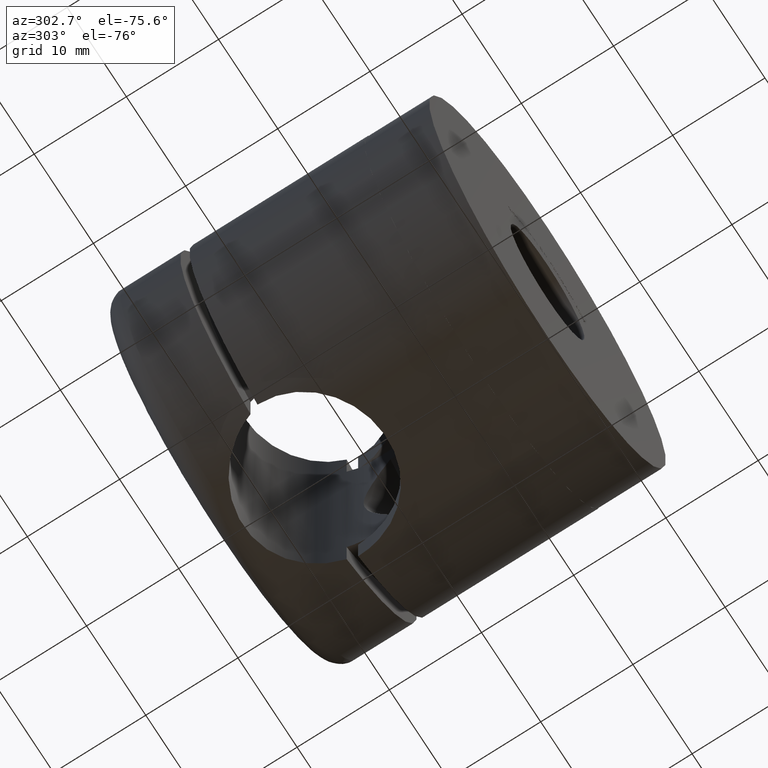
[diagram: clean part render]
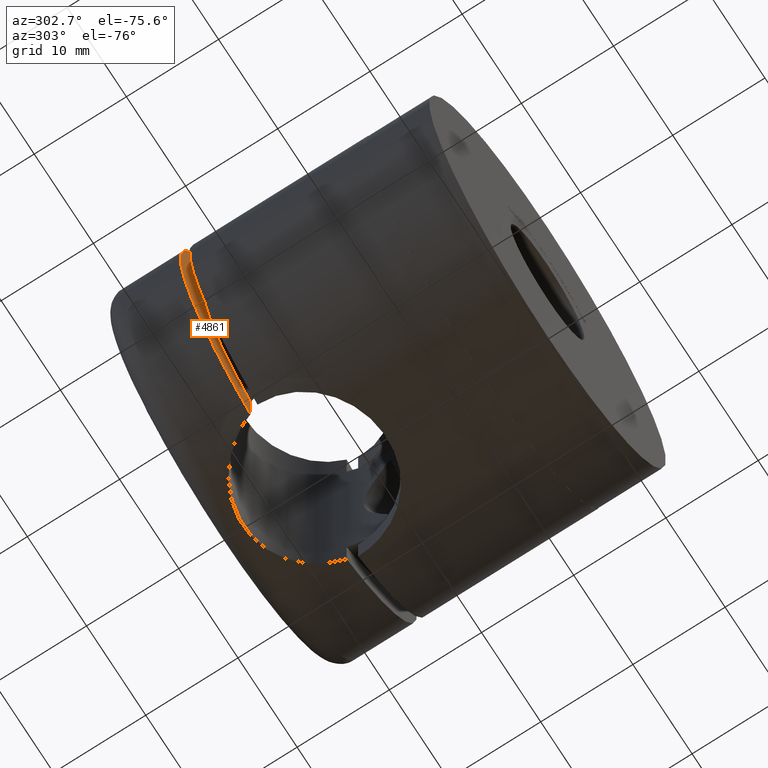
[diagram: same view with one face highlighted and labeled with its STEP entity id]
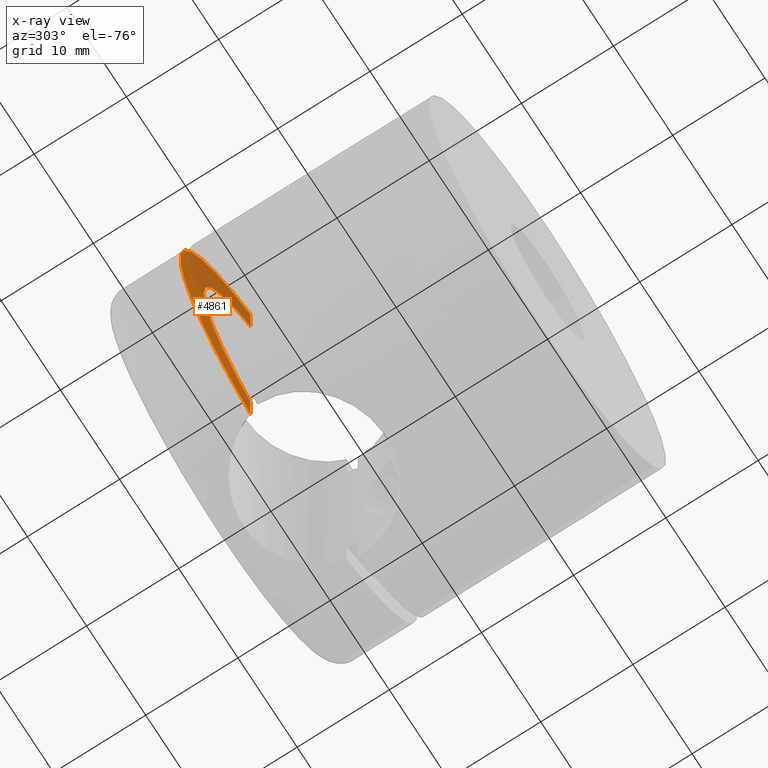
[diagram: x-ray of the same camera — body ghosted, the highlighted face saturated]
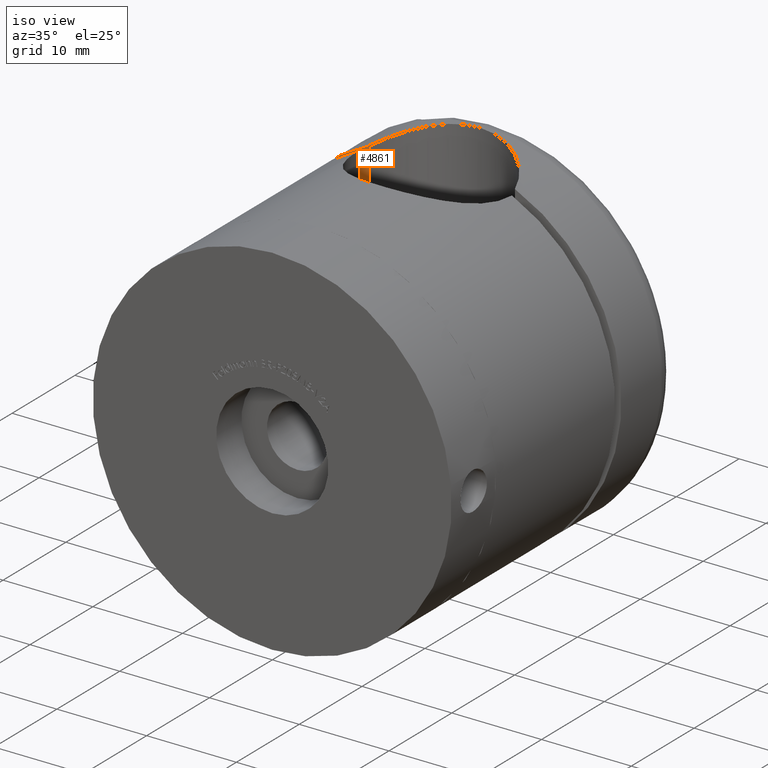
[diagram: same view with one face highlighted and labeled with its STEP entity id]
A machine part, auxiliary view. The second image highlights one B-rep face of the part: STEP entity #4861.
The next image is the same camera in x-ray: the body ghosted, the highlighted face saturated — about 44% of this face is hidden behind the body in this view.
A second angle (iso view) of the same face is appended — the face is thin or edge-on in the first view.
In plain terms, the highlighted planar face has unit normal (0, -1, 0).
Its self-contained STEP definition (entity closure, byte-faithful):
#847 = CARTESIAN_POINT ( 'NONE',  ( 0.0000000000000000000, 10.00000000000000000, 0.0000000000000000000 ) ) ;
#898 = AXIS2_PLACEMENT_3D ( 'NONE', #847, #7387, #5938 ) ;
#979 = VECTOR ( 'NONE', #11609, 1000.000000000000000 ) ;
#1027 = VERTEX_POINT ( 'NONE', #11478 ) ;
#1254 = EDGE_CURVE ( 'NONE', #8902, #1027, #15155, .T. ) ;
#1308 = ORIENTED_EDGE ( 'NONE', *, *, #5426, .F. ) ;
#1425 = DIRECTION ( 'NONE',  ( 0.0000000000000000000, 1.000000000000000000, 0.0000000000000000000 ) ) ;
#1608 = EDGE_CURVE ( 'NONE', #12387, #8902, #13892, .T. ) ;
#4537 = CIRCLE ( 'NONE', #11277, 20.00000000000000000 ) ;
#4629 = DIRECTION ( 'NONE',  ( 0.0000000000000000000, 0.0000000000000000000, 1.000000000000000000 ) ) ;
#4861 = ADVANCED_FACE ( 'NONE', ( #14254 ), #11458, .T. ) ;
#5253 = CARTESIAN_POINT ( 'NONE',  ( 0.0000000000000000000, 10.00000000000000000, 0.0000000000000000000 ) ) ;
#5426 = EDGE_CURVE ( 'NONE', #1027, #11580, #15894, .T. ) ;
#5938 = DIRECTION ( 'NONE',  ( 0.0000000000000000000, -0.0000000000000000000, 1.000000000000000000 ) ) ;
#6828 = CARTESIAN_POINT ( 'NONE',  ( -8.124038404635960800, 10.00000000000000000, -18.27566688249706700 ) ) ;
#7387 = DIRECTION ( 'NONE',  ( 0.0000000000000000000, 1.000000000000000000, 0.0000000000000000000 ) ) ;
#8278 = DIRECTION ( 'NONE',  ( -0.0000000000000000000, -0.0000000000000000000, 1.000000000000000000 ) ) ;
#8902 = VERTEX_POINT ( 'NONE', #11096 ) ;
#10873 = CARTESIAN_POINT ( 'NONE',  ( -8.124038404635960800, 10.00000000000000000, -20.00000000000000000 ) ) ;
#11096 = CARTESIAN_POINT ( 'NONE',  ( -8.124038404635962600, 10.00000000000000200, -13.84205548320046500 ) ) ;
#11277 = AXIS2_PLACEMENT_3D ( 'NONE', #14212, #12679, #4629 ) ;
#11310 = EDGE_LOOP ( 'NONE', ( #15116, #15254, #1308, #14717 ) ) ;
#11458 = PLANE ( 'NONE',  #898 ) ;
#11478 = CARTESIAN_POINT ( 'NONE',  ( -8.124038404635962600, 10.00000000000000200, 13.84205548320046500 ) ) ;
#11580 = VERTEX_POINT ( 'NONE', #16065 ) ;
#11609 = DIRECTION ( 'NONE',  ( -0.0000000000000000000, -0.0000000000000000000, 1.000000000000000000 ) ) ;
#12387 = VERTEX_POINT ( 'NONE', #6828 ) ;
#12679 = DIRECTION ( 'NONE',  ( 0.0000000000000000000, 1.000000000000000000, 0.0000000000000000000 ) ) ;
#13432 = DIRECTION ( 'NONE',  ( 0.0000000000000000000, 0.0000000000000000000, 1.000000000000000000 ) ) ;
#13470 = EDGE_CURVE ( 'NONE', #12387, #11580, #4537, .T. ) ;
#13892 = LINE ( 'NONE', #10873, #14730 ) ;
#14212 = CARTESIAN_POINT ( 'NONE',  ( 0.0000000000000000000, 10.00000000000000000, 0.0000000000000000000 ) ) ;
#14254 = FACE_OUTER_BOUND ( 'NONE', #11310, .T. ) ;
#14717 = ORIENTED_EDGE ( 'NONE', *, *, #1254, .F. ) ;
#14730 = VECTOR ( 'NONE', #8278, 1000.000000000000000 ) ;
#14857 = AXIS2_PLACEMENT_3D ( 'NONE', #5253, #1425, #13432 ) ;
#15116 = ORIENTED_EDGE ( 'NONE', *, *, #1608, .F. ) ;
#15155 = CIRCLE ( 'NONE', #14857, 16.05000000000000100 ) ;
#15254 = ORIENTED_EDGE ( 'NONE', *, *, #13470, .T. ) ;
#15894 = LINE ( 'NONE', #16915, #979 ) ;
#16065 = CARTESIAN_POINT ( 'NONE',  ( -8.124038404635960800, 10.00000000000000000, 18.27566688249706700 ) ) ;
#16915 = CARTESIAN_POINT ( 'NONE',  ( -8.124038404635960800, 10.00000000000000000, -20.00000000000000000 ) ) ;